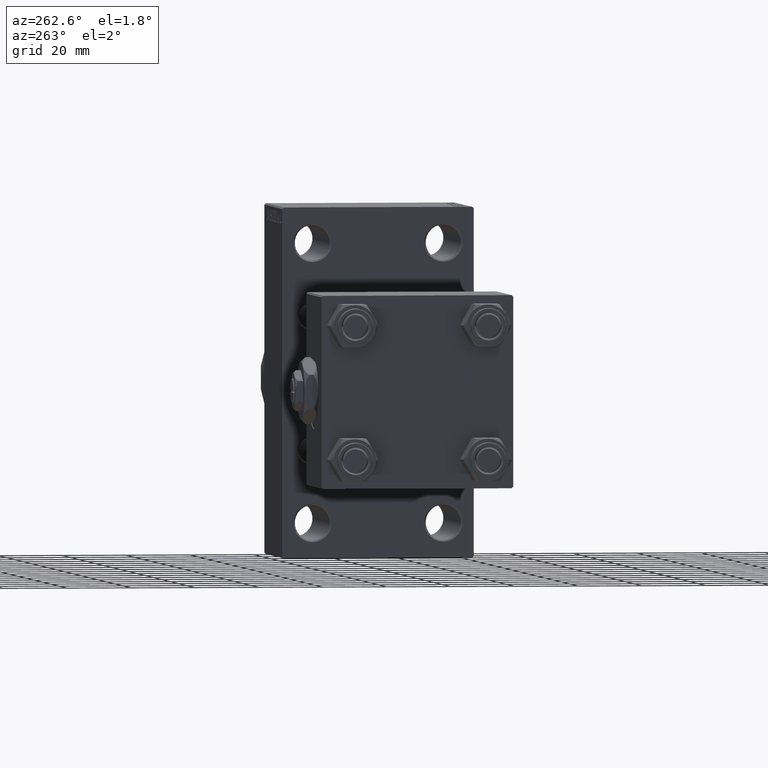
[diagram: clean part render]
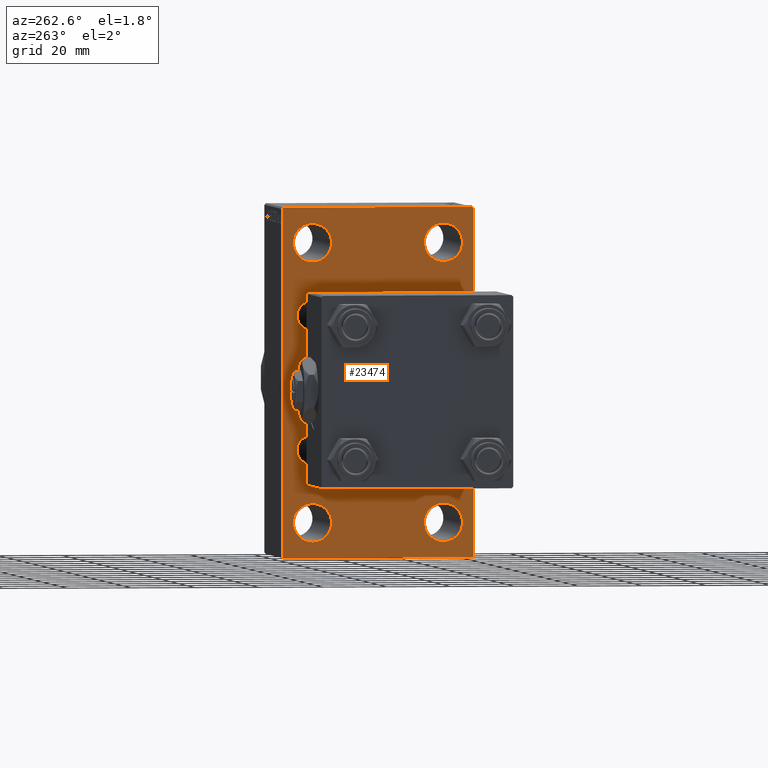
[diagram: same view with one face highlighted and labeled with its STEP entity id]
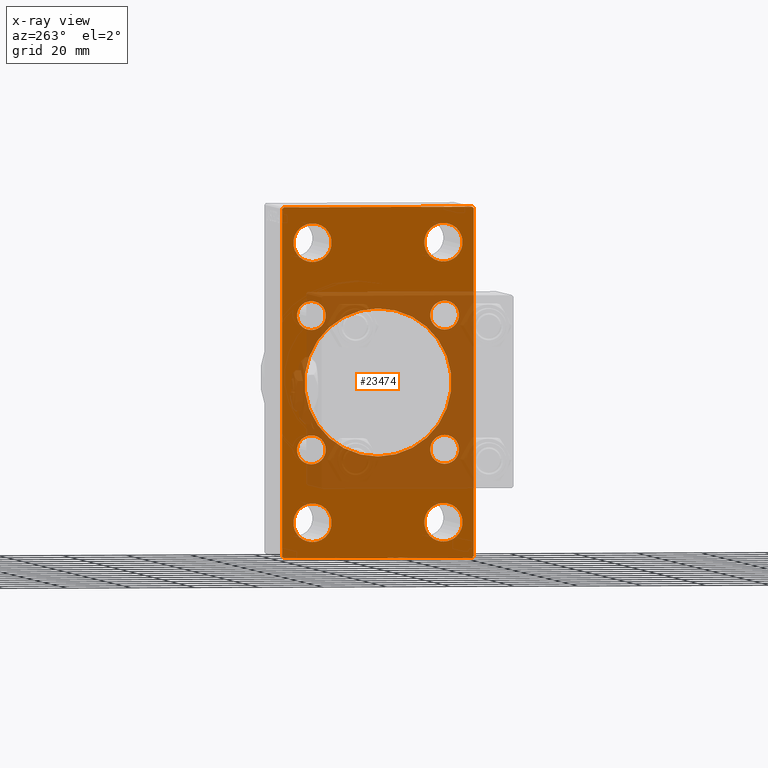
[diagram: x-ray of the same camera — body ghosted, the highlighted face saturated]
A machine part, auxiliary view. The second image highlights one B-rep face of the part: STEP entity #23474.
The next image is the same camera in x-ray: the body ghosted, the highlighted face saturated — about 34% of this face is hidden behind the body in this view.
In plain terms, the highlighted planar face has unit normal (-1, 0, 0).
Its self-contained STEP definition (entity closure, byte-faithful):
#20 = DIRECTION ( 'NONE',  ( 0.000000000000000000, 0.000000000000000000, 1.000000000000000000 ) ) ;
#366 = DIRECTION ( 'NONE',  ( -0.000000000000000000, 0.7071067811865451302, 0.7071067811865500152 ) ) ;
#473 = EDGE_CURVE ( 'NONE', #29864, #26269, #21199, .T. ) ;
#630 = ORIENTED_EDGE ( 'NONE', *, *, #32202, .T. ) ;
#711 = VERTEX_POINT ( 'NONE', #38872 ) ;
#1065 = CARTESIAN_POINT ( 'NONE',  ( 95.00000000000000000, -20.50000000000000000, -49.49999999999989342 ) ) ;
#1252 = CARTESIAN_POINT ( 'NONE',  ( 95.00000000000000000, -30.00000000000000000, -53.99999999999998579 ) ) ;
#1906 = AXIS2_PLACEMENT_3D ( 'NONE', #42564, #16215, #34692 ) ;
#1993 = VECTOR ( 'NONE', #13143, 1000.000000000000000 ) ;
#2039 = ORIENTED_EDGE ( 'NONE', *, *, #43301, .T. ) ;
#2206 = CIRCLE ( 'NONE', #39950, 5.999999999999894307 ) ;
#2331 = CARTESIAN_POINT ( 'NONE',  ( 95.00000000000000000, 20.50000000000000000, -37.50000000000009948 ) ) ;
#2340 = AXIS2_PLACEMENT_3D ( 'NONE', #17667, #6334, #14899 ) ;
#2724 = CIRCLE ( 'NONE', #18427, 4.500000000000007105 ) ;
#2856 = CARTESIAN_POINT ( 'NONE',  ( 95.00000000000000000, 0.000000000000000000, 0.000000000000000000 ) ) ;
#2968 = ORIENTED_EDGE ( 'NONE', *, *, #11060, .T. ) ;
#3415 = FACE_BOUND ( 'NONE', #14190, .T. ) ;
#3755 = DIRECTION ( 'NONE',  ( 0.000000000000000000, 0.000000000000000000, 1.000000000000000000 ) ) ;
#3789 = CIRCLE ( 'NONE', #45454, 4.500000000000007105 ) ;
#4281 = VERTEX_POINT ( 'NONE', #1065 ) ;
#4614 = CARTESIAN_POINT ( 'NONE',  ( 95.00000000000000000, 20.50000000000000000, 43.50000000000000000 ) ) ;
#4845 = DIRECTION ( 'NONE',  ( 0.000000000000000000, 0.000000000000000000, 1.000000000000000000 ) ) ;
#5000 = CARTESIAN_POINT ( 'NONE',  ( 95.00000000000000000, 20.84999999999999787, 16.34999999999999432 ) ) ;
#5062 = ORIENTED_EDGE ( 'NONE', *, *, #16625, .T. ) ;
#5366 = EDGE_CURVE ( 'NONE', #46607, #18699, #43188, .T. ) ;
#5872 = EDGE_CURVE ( 'NONE', #22015, #26871, #33420, .T. ) ;
#5928 = CARTESIAN_POINT ( 'NONE',  ( 95.00000000000000000, 29.99999999999999645, 54.49999999999999289 ) ) ;
#6044 = AXIS2_PLACEMENT_3D ( 'NONE', #2856, #20838, #9738 ) ;
#6133 = AXIS2_PLACEMENT_3D ( 'NONE', #23908, #8882, #38939 ) ;
#6180 = CARTESIAN_POINT ( 'NONE',  ( 95.00000000000000000, 20.84999999999999787, 20.85000000000000142 ) ) ;
#6334 = DIRECTION ( 'NONE',  ( 1.000000000000000000, -0.000000000000000000, 0.000000000000000000 ) ) ;
#7117 = FACE_BOUND ( 'NONE', #27988, .T. ) ;
#8026 = DIRECTION ( 'NONE',  ( 1.000000000000000000, -0.000000000000000000, 0.000000000000000000 ) ) ;
#8247 = DIRECTION ( 'NONE',  ( 1.000000000000000000, -0.000000000000000000, 0.000000000000000000 ) ) ;
#8277 = ORIENTED_EDGE ( 'NONE', *, *, #38651, .T. ) ;
#8612 = DIRECTION ( 'NONE',  ( 1.000000000000000000, -0.000000000000000000, 0.000000000000000000 ) ) ;
#8882 = DIRECTION ( 'NONE',  ( 1.000000000000000000, -0.000000000000000000, 0.000000000000000000 ) ) ;
#8992 = AXIS2_PLACEMENT_3D ( 'NONE', #9026, #34665, #20125 ) ;
#9026 = CARTESIAN_POINT ( 'NONE',  ( 95.00000000000000000, -20.84999999999999076, 20.85000000000000497 ) ) ;
#9206 = CARTESIAN_POINT ( 'NONE',  ( 95.00000000000000000, 29.50000000000002132, 54.49999999999999289 ) ) ;
#9522 = CARTESIAN_POINT ( 'NONE',  ( 95.00000000000000000, -20.84999999999999076, -25.35000000000001208 ) ) ;
#9738 = DIRECTION ( 'NONE',  ( -0.000000000000000000, 0.000000000000000000, 1.000000000000000000 ) ) ;
#9902 = VERTEX_POINT ( 'NONE', #27894 ) ;
#9963 = ORIENTED_EDGE ( 'NONE', *, *, #45740, .F. ) ;
#10041 = VERTEX_POINT ( 'NONE', #22199 ) ;
#10136 = CIRCLE ( 'NONE', #14082, 5.999999999999894307 ) ;
#10139 = CIRCLE ( 'NONE', #14085, 4.500000000000007105 ) ;
#10411 = DIRECTION ( 'NONE',  ( 1.000000000000000000, 0.000000000000000000, 0.000000000000000000 ) ) ;
#10473 = ORIENTED_EDGE ( 'NONE', *, *, #17104, .T. ) ;
#10546 = VERTEX_POINT ( 'NONE', #5000 ) ;
#10613 = AXIS2_PLACEMENT_3D ( 'NONE', #39997, #47387, #46674 ) ;
#10808 = FACE_BOUND ( 'NONE', #31910, .T. ) ;
#11060 = EDGE_CURVE ( 'NONE', #18699, #33617, #37883, .T. ) ;
#11218 = ORIENTED_EDGE ( 'NONE', *, *, #48584, .T. ) ;
#11388 = VECTOR ( 'NONE', #31160, 1000.000000000000000 ) ;
#11591 = CIRCLE ( 'NONE', #46992, 4.500000000000007105 ) ;
#11863 = ORIENTED_EDGE ( 'NONE', *, *, #15330, .T. ) ;
#12016 = ORIENTED_EDGE ( 'NONE', *, *, #5366, .T. ) ;
#12368 = DIRECTION ( 'NONE',  ( 0.000000000000000000, 0.000000000000000000, -1.000000000000000000 ) ) ;
#12399 = ORIENTED_EDGE ( 'NONE', *, *, #18657, .T. ) ;
#12667 = LINE ( 'NONE', #46647, #1993 ) ;
#12956 = VECTOR ( 'NONE', #27057, 1000.000000000000114 ) ;
#13143 = DIRECTION ( 'NONE',  ( 0.000000000000000000, 0.000000000000000000, -1.000000000000000000 ) ) ;
#13162 = CARTESIAN_POINT ( 'NONE',  ( 95.00000000000000000, 20.50000000000000000, 49.49999999999989342 ) ) ;
#13186 = ORIENTED_EDGE ( 'NONE', *, *, #30284, .T. ) ;
#13261 = ORIENTED_EDGE ( 'NONE', *, *, #42337, .T. ) ;
#13276 = VECTOR ( 'NONE', #17795, 1000.000000000000000 ) ;
#13291 = EDGE_LOOP ( 'NONE', ( #28984, #43757 ) ) ;
#13364 = CARTESIAN_POINT ( 'NONE',  ( 95.00000000000000000, 29.99999999999999645, -54.49999999999999289 ) ) ;
#13484 = CARTESIAN_POINT ( 'NONE',  ( 95.00000000000000000, -20.84999999999999076, 25.35000000000001208 ) ) ;
#13650 = ORIENTED_EDGE ( 'NONE', *, *, #17931, .T. ) ;
#14082 = AXIS2_PLACEMENT_3D ( 'NONE', #4614, #15700, #4845 ) ;
#14085 = AXIS2_PLACEMENT_3D ( 'NONE', #44399, #40945, #3755 ) ;
#14182 = DIRECTION ( 'NONE',  ( 1.000000000000000000, -0.000000000000000000, 0.000000000000000000 ) ) ;
#14190 = EDGE_LOOP ( 'NONE', ( #39777, #23242 ) ) ;
#14360 = CARTESIAN_POINT ( 'NONE',  ( 95.00000000000000000, -20.50000000000000000, 49.49999999999989342 ) ) ;
#14501 = FACE_BOUND ( 'NONE', #40305, .T. ) ;
#14899 = DIRECTION ( 'NONE',  ( 0.000000000000000000, 0.000000000000000000, 1.000000000000000000 ) ) ;
#15257 = CARTESIAN_POINT ( 'NONE',  ( 95.00000000000000000, 2.146024240737012665E-16, -23.00000000000000000 ) ) ;
#15296 = CARTESIAN_POINT ( 'NONE',  ( 95.00000000000000000, 20.84999999999999787, -25.35000000000000853 ) ) ;
#15304 = AXIS2_PLACEMENT_3D ( 'NONE', #22562, #8026, #29726 ) ;
#15330 = EDGE_CURVE ( 'NONE', #10041, #36801, #44811, .T. ) ;
#15571 = AXIS2_PLACEMENT_3D ( 'NONE', #44779, #29270, #44054 ) ;
#15700 = DIRECTION ( 'NONE',  ( 1.000000000000000000, -0.000000000000000000, 0.000000000000000000 ) ) ;
#15854 = VERTEX_POINT ( 'NONE', #15257 ) ;
#15866 = ORIENTED_EDGE ( 'NONE', *, *, #38179, .T. ) ;
#16130 = CARTESIAN_POINT ( 'NONE',  ( 95.00000000000000000, -42.00000000000051159, -41.99999999999905498 ) ) ;
#16215 = DIRECTION ( 'NONE',  ( 1.000000000000000000, -0.000000000000000000, 0.000000000000000000 ) ) ;
#16625 = EDGE_CURVE ( 'NONE', #39354, #26269, #26958, .T. ) ;
#17104 = EDGE_CURVE ( 'NONE', #36801, #10041, #10136, .T. ) ;
#17610 = PLANE ( 'NONE',  #6044 ) ;
#17667 = CARTESIAN_POINT ( 'NONE',  ( 95.00000000000000000, 20.50000000000000000, 43.50000000000000000 ) ) ;
#17694 = CARTESIAN_POINT ( 'NONE',  ( 95.00000000000000000, 20.84999999999999787, 25.35000000000000853 ) ) ;
#17795 = DIRECTION ( 'NONE',  ( 0.000000000000000000, 0.000000000000000000, -1.000000000000000000 ) ) ;
#17931 = EDGE_CURVE ( 'NONE', #29864, #46607, #33538, .T. ) ;
#18073 = DIRECTION ( 'NONE',  ( 1.000000000000000000, -0.000000000000000000, 0.000000000000000000 ) ) ;
#18306 = DIRECTION ( 'NONE',  ( 0.000000000000000000, 0.000000000000000000, 1.000000000000000000 ) ) ;
#18427 = AXIS2_PLACEMENT_3D ( 'NONE', #29195, #21307, #26219 ) ;
#18433 = FACE_BOUND ( 'NONE', #32435, .T. ) ;
#18503 = EDGE_CURVE ( 'NONE', #23170, #4281, #2206, .T. ) ;
#18657 = EDGE_CURVE ( 'NONE', #32084, #40982, #27380, .T. ) ;
#18699 = VERTEX_POINT ( 'NONE', #32448 ) ;
#19102 = CARTESIAN_POINT ( 'NONE',  ( 95.00000000000000000, -20.84999999999999076, 16.34999999999999787 ) ) ;
#19371 = EDGE_LOOP ( 'NONE', ( #47540, #11218 ) ) ;
#19693 = CARTESIAN_POINT ( 'NONE',  ( 95.00000000000000000, -20.84999999999999076, -20.85000000000000497 ) ) ;
#20125 = DIRECTION ( 'NONE',  ( 0.000000000000000000, 0.000000000000000000, 1.000000000000000000 ) ) ;
#20356 = EDGE_CURVE ( 'NONE', #46086, #10546, #28383, .T. ) ;
#20838 = DIRECTION ( 'NONE',  ( -1.000000000000000000, 0.000000000000000000, -0.000000000000000000 ) ) ;
#21199 = LINE ( 'NONE', #5928, #41299 ) ;
#21307 = DIRECTION ( 'NONE',  ( 1.000000000000000000, -0.000000000000000000, 0.000000000000000000 ) ) ;
#21702 = DIRECTION ( 'NONE',  ( 0.000000000000000000, 0.000000000000000000, 1.000000000000000000 ) ) ;
#21984 = DIRECTION ( 'NONE',  ( 1.000000000000000000, -0.000000000000000000, 0.000000000000000000 ) ) ;
#22015 = VERTEX_POINT ( 'NONE', #14360 ) ;
#22199 = CARTESIAN_POINT ( 'NONE',  ( 95.00000000000000000, 20.50000000000000000, 37.50000000000009948 ) ) ;
#22402 = VERTEX_POINT ( 'NONE', #9522 ) ;
#22554 = CARTESIAN_POINT ( 'NONE',  ( 95.00000000000000000, -20.50000000000000000, 37.50000000000009948 ) ) ;
#22562 = CARTESIAN_POINT ( 'NONE',  ( 95.00000000000000000, -20.50000000000000000, 43.50000000000000000 ) ) ;
#23006 = DIRECTION ( 'NONE',  ( 0.000000000000000000, 0.000000000000000000, 1.000000000000000000 ) ) ;
#23141 = CIRCLE ( 'NONE', #1906, 4.500000000000007105 ) ;
#23162 = VECTOR ( 'NONE', #25163, 1000.000000000000000 ) ;
#23170 = VERTEX_POINT ( 'NONE', #28611 ) ;
#23242 = ORIENTED_EDGE ( 'NONE', *, *, #42481, .T. ) ;
#23474 = ADVANCED_FACE ( 'NONE', ( #14501, #44562, #3415, #10808, #25852, #40858, #7117, #18433, #33486, #39793 ), #17610, .T. ) ;
#23645 = EDGE_CURVE ( 'NONE', #40616, #39913, #35975, .T. ) ;
#23750 = LINE ( 'NONE', #16130, #11388 ) ;
#23908 = CARTESIAN_POINT ( 'NONE',  ( 95.00000000000000000, 20.84999999999999787, -20.85000000000000142 ) ) ;
#24082 = EDGE_LOOP ( 'NONE', ( #630, #15866 ) ) ;
#24232 = CARTESIAN_POINT ( 'NONE',  ( 95.00000000000000000, 29.99999999999999645, 54.49999999999999289 ) ) ;
#24269 = CARTESIAN_POINT ( 'NONE',  ( 95.00000000000000000, -29.49999999999997513, 54.50000000000000000 ) ) ;
#25163 = DIRECTION ( 'NONE',  ( 0.000000000000000000, 0.7071067811865279218, -0.7071067811865671127 ) ) ;
#25260 = CARTESIAN_POINT ( 'NONE',  ( 95.00000000000000000, 20.50000000000000000, -43.50000000000000000 ) ) ;
#25274 = CARTESIAN_POINT ( 'NONE',  ( 95.00000000000000000, -20.50000000000000000, 43.50000000000000000 ) ) ;
#25690 = DIRECTION ( 'NONE',  ( 1.000000000000000000, -0.000000000000000000, 0.000000000000000000 ) ) ;
#25759 = AXIS2_PLACEMENT_3D ( 'NONE', #25260, #18073, #18306 ) ;
#25852 = FACE_BOUND ( 'NONE', #24082, .T. ) ;
#26050 = VERTEX_POINT ( 'NONE', #13484 ) ;
#26053 = ORIENTED_EDGE ( 'NONE', *, *, #46409, .T. ) ;
#26219 = DIRECTION ( 'NONE',  ( 0.000000000000000000, 0.000000000000000000, 1.000000000000000000 ) ) ;
#26253 = EDGE_CURVE ( 'NONE', #4281, #23170, #48393, .T. ) ;
#26269 = VERTEX_POINT ( 'NONE', #24269 ) ;
#26570 = CIRCLE ( 'NONE', #15571, 23.00000000000000000 ) ;
#26722 = CARTESIAN_POINT ( 'NONE',  ( 95.00000000000000000, -42.00000000000008527, 41.99999999999979394 ) ) ;
#26871 = VERTEX_POINT ( 'NONE', #22554 ) ;
#26958 = LINE ( 'NONE', #26722, #40015 ) ;
#27057 = DIRECTION ( 'NONE',  ( -0.000000000000000000, -0.7071067811865474617, -0.7071067811865474617 ) ) ;
#27380 = CIRCLE ( 'NONE', #6133, 4.500000000000007105 ) ;
#27758 = VERTEX_POINT ( 'NONE', #19102 ) ;
#27894 = CARTESIAN_POINT ( 'NONE',  ( 95.00000000000000000, -20.84999999999999076, -16.34999999999999787 ) ) ;
#27988 = EDGE_LOOP ( 'NONE', ( #12399, #2039 ) ) ;
#28383 = CIRCLE ( 'NONE', #30741, 4.500000000000007105 ) ;
#28611 = CARTESIAN_POINT ( 'NONE',  ( 95.00000000000000000, -20.50000000000000000, -37.50000000000009948 ) ) ;
#28835 = DIRECTION ( 'NONE',  ( 0.000000000000000000, -1.000000000000000000, 1.156482317317871478E-16 ) ) ;
#28855 = CARTESIAN_POINT ( 'NONE',  ( 95.00000000000000000, 42.00000000000082423, 41.99999999999849365 ) ) ;
#28984 = ORIENTED_EDGE ( 'NONE', *, *, #30577, .T. ) ;
#29028 = ORIENTED_EDGE ( 'NONE', *, *, #473, .F. ) ;
#29195 = CARTESIAN_POINT ( 'NONE',  ( 95.00000000000000000, 20.84999999999999787, -20.85000000000000142 ) ) ;
#29264 = VERTEX_POINT ( 'NONE', #44334 ) ;
#29270 = DIRECTION ( 'NONE',  ( 1.000000000000000000, 0.000000000000000000, 0.000000000000000000 ) ) ;
#29410 = AXIS2_PLACEMENT_3D ( 'NONE', #48342, #25690, #44641 ) ;
#29704 = EDGE_CURVE ( 'NONE', #22402, #9902, #11591, .T. ) ;
#29726 = DIRECTION ( 'NONE',  ( 0.000000000000000000, 0.000000000000000000, 1.000000000000000000 ) ) ;
#29864 = VERTEX_POINT ( 'NONE', #9206 ) ;
#29943 = DIRECTION ( 'NONE',  ( 0.000000000000000000, 0.000000000000000000, 1.000000000000000000 ) ) ;
#29980 = EDGE_CURVE ( 'NONE', #15854, #711, #46235, .T. ) ;
#30284 = EDGE_CURVE ( 'NONE', #9902, #22402, #3789, .T. ) ;
#30577 = EDGE_CURVE ( 'NONE', #711, #15854, #26570, .T. ) ;
#30680 = CARTESIAN_POINT ( 'NONE',  ( 95.00000000000000000, 20.84999999999999787, -16.34999999999999432 ) ) ;
#30741 = AXIS2_PLACEMENT_3D ( 'NONE', #6180, #32781, #21702 ) ;
#31160 = DIRECTION ( 'NONE',  ( 0.000000000000000000, -0.7071067811865352493, 0.7071067811865597852 ) ) ;
#31908 = ORIENTED_EDGE ( 'NONE', *, *, #5872, .T. ) ;
#31910 = EDGE_LOOP ( 'NONE', ( #10473, #11863 ) ) ;
#31940 = EDGE_LOOP ( 'NONE', ( #44481, #40500 ) ) ;
#32084 = VERTEX_POINT ( 'NONE', #30680 ) ;
#32202 = EDGE_CURVE ( 'NONE', #26050, #27758, #10139, .T. ) ;
#32435 = EDGE_LOOP ( 'NONE', ( #13186, #40321 ) ) ;
#32448 = CARTESIAN_POINT ( 'NONE',  ( 95.00000000000000000, 29.99999999999999645, -53.99999999999999289 ) ) ;
#32781 = DIRECTION ( 'NONE',  ( 1.000000000000000000, -0.000000000000000000, 0.000000000000000000 ) ) ;
#33420 = CIRCLE ( 'NONE', #15304, 5.999999999999894307 ) ;
#33486 = FACE_BOUND ( 'NONE', #13291, .T. ) ;
#33501 = CIRCLE ( 'NONE', #48445, 5.999999999999894307 ) ;
#33538 = LINE ( 'NONE', #28855, #23162 ) ;
#33567 = DIRECTION ( 'NONE',  ( 0.000000000000000000, 0.000000000000000000, 1.000000000000000000 ) ) ;
#33617 = VERTEX_POINT ( 'NONE', #39915 ) ;
#34034 = CARTESIAN_POINT ( 'NONE',  ( 95.00000000000000000, -20.50000000000000000, -43.50000000000000000 ) ) ;
#34119 = VECTOR ( 'NONE', #43411, 1000.000000000000000 ) ;
#34665 = DIRECTION ( 'NONE',  ( 1.000000000000000000, -0.000000000000000000, 0.000000000000000000 ) ) ;
#34692 = DIRECTION ( 'NONE',  ( 0.000000000000000000, 0.000000000000000000, 1.000000000000000000 ) ) ;
#35187 = CARTESIAN_POINT ( 'NONE',  ( 95.00000000000000000, 41.99999999999998579, -41.99999999999998579 ) ) ;
#35715 = CIRCLE ( 'NONE', #8992, 4.500000000000007105 ) ;
#35757 = CARTESIAN_POINT ( 'NONE',  ( 95.00000000000000000, 20.50000000000000000, -49.49999999999989342 ) ) ;
#35975 = CIRCLE ( 'NONE', #25759, 5.999999999999894307 ) ;
#36021 = LINE ( 'NONE', #13364, #34119 ) ;
#36801 = VERTEX_POINT ( 'NONE', #13162 ) ;
#37596 = AXIS2_PLACEMENT_3D ( 'NONE', #44162, #10411, #12368 ) ;
#37883 = LINE ( 'NONE', #35187, #12956 ) ;
#38179 = EDGE_CURVE ( 'NONE', #27758, #26050, #35715, .T. ) ;
#38651 = EDGE_CURVE ( 'NONE', #29264, #47111, #23750, .T. ) ;
#38872 = CARTESIAN_POINT ( 'NONE',  ( 95.00000000000000000, -2.602085213965210642E-15, 23.00000000000000000 ) ) ;
#38939 = DIRECTION ( 'NONE',  ( 0.000000000000000000, 0.000000000000000000, 1.000000000000000000 ) ) ;
#39354 = VERTEX_POINT ( 'NONE', #44487 ) ;
#39777 = ORIENTED_EDGE ( 'NONE', *, *, #23645, .T. ) ;
#39793 = FACE_OUTER_BOUND ( 'NONE', #47404, .T. ) ;
#39913 = VERTEX_POINT ( 'NONE', #35757 ) ;
#39915 = CARTESIAN_POINT ( 'NONE',  ( 95.00000000000000000, 29.49999999999999645, -54.49999999999999289 ) ) ;
#39950 = AXIS2_PLACEMENT_3D ( 'NONE', #34034, #21984, #33567 ) ;
#39997 = CARTESIAN_POINT ( 'NONE',  ( 95.00000000000000000, -20.50000000000000000, -43.50000000000000000 ) ) ;
#40015 = VECTOR ( 'NONE', #366, 1000.000000000000114 ) ;
#40305 = EDGE_LOOP ( 'NONE', ( #31908, #26053 ) ) ;
#40321 = ORIENTED_EDGE ( 'NONE', *, *, #29704, .T. ) ;
#40500 = ORIENTED_EDGE ( 'NONE', *, *, #26253, .T. ) ;
#40616 = VERTEX_POINT ( 'NONE', #2331 ) ;
#40858 = FACE_BOUND ( 'NONE', #19371, .T. ) ;
#40945 = DIRECTION ( 'NONE',  ( 1.000000000000000000, -0.000000000000000000, 0.000000000000000000 ) ) ;
#40982 = VERTEX_POINT ( 'NONE', #15296 ) ;
#41299 = VECTOR ( 'NONE', #28835, 1000.000000000000000 ) ;
#42229 = CARTESIAN_POINT ( 'NONE',  ( 95.00000000000000000, -20.84999999999999076, -20.85000000000000497 ) ) ;
#42337 = EDGE_CURVE ( 'NONE', #33617, #29264, #36021, .T. ) ;
#42481 = EDGE_CURVE ( 'NONE', #39913, #40616, #44341, .T. ) ;
#42564 = CARTESIAN_POINT ( 'NONE',  ( 95.00000000000000000, 20.84999999999999787, 20.85000000000000142 ) ) ;
#43188 = LINE ( 'NONE', #24232, #13276 ) ;
#43301 = EDGE_CURVE ( 'NONE', #40982, #32084, #2724, .T. ) ;
#43411 = DIRECTION ( 'NONE',  ( 0.000000000000000000, -1.000000000000000000, -1.156482317317871478E-16 ) ) ;
#43757 = ORIENTED_EDGE ( 'NONE', *, *, #29980, .T. ) ;
#44054 = DIRECTION ( 'NONE',  ( 0.000000000000000000, 0.000000000000000000, -1.000000000000000000 ) ) ;
#44162 = CARTESIAN_POINT ( 'NONE',  ( 95.00000000000000000, -2.602085213965210642E-15, 0.000000000000000000 ) ) ;
#44334 = CARTESIAN_POINT ( 'NONE',  ( 95.00000000000000000, -29.50000000000000355, -54.50000000000000000 ) ) ;
#44341 = CIRCLE ( 'NONE', #29410, 5.999999999999894307 ) ;
#44399 = CARTESIAN_POINT ( 'NONE',  ( 95.00000000000000000, -20.84999999999999076, 20.85000000000000497 ) ) ;
#44481 = ORIENTED_EDGE ( 'NONE', *, *, #18503, .T. ) ;
#44487 = CARTESIAN_POINT ( 'NONE',  ( 95.00000000000000000, -30.00000000000000000, 53.99999999999997158 ) ) ;
#44562 = FACE_BOUND ( 'NONE', #31940, .T. ) ;
#44641 = DIRECTION ( 'NONE',  ( 0.000000000000000000, 0.000000000000000000, 1.000000000000000000 ) ) ;
#44779 = CARTESIAN_POINT ( 'NONE',  ( 95.00000000000000000, -2.602085213965210642E-15, 0.000000000000000000 ) ) ;
#44811 = CIRCLE ( 'NONE', #2340, 5.999999999999894307 ) ;
#45454 = AXIS2_PLACEMENT_3D ( 'NONE', #19693, #8612, #20 ) ;
#45740 = EDGE_CURVE ( 'NONE', #39354, #47111, #12667, .T. ) ;
#46086 = VERTEX_POINT ( 'NONE', #17694 ) ;
#46235 = CIRCLE ( 'NONE', #37596, 23.00000000000000000 ) ;
#46409 = EDGE_CURVE ( 'NONE', #26871, #22015, #33501, .T. ) ;
#46607 = VERTEX_POINT ( 'NONE', #47374 ) ;
#46647 = CARTESIAN_POINT ( 'NONE',  ( 95.00000000000000000, -30.00000000000000000, 54.50000000000000000 ) ) ;
#46674 = DIRECTION ( 'NONE',  ( 0.000000000000000000, 0.000000000000000000, 1.000000000000000000 ) ) ;
#46992 = AXIS2_PLACEMENT_3D ( 'NONE', #42229, #8247, #23006 ) ;
#47111 = VERTEX_POINT ( 'NONE', #1252 ) ;
#47374 = CARTESIAN_POINT ( 'NONE',  ( 95.00000000000000000, 29.99999999999999645, 53.99999999999999289 ) ) ;
#47387 = DIRECTION ( 'NONE',  ( 1.000000000000000000, -0.000000000000000000, 0.000000000000000000 ) ) ;
#47404 = EDGE_LOOP ( 'NONE', ( #13261, #8277, #9963, #5062, #29028, #13650, #12016, #2968 ) ) ;
#47540 = ORIENTED_EDGE ( 'NONE', *, *, #20356, .T. ) ;
#48342 = CARTESIAN_POINT ( 'NONE',  ( 95.00000000000000000, 20.50000000000000000, -43.50000000000000000 ) ) ;
#48393 = CIRCLE ( 'NONE', #10613, 5.999999999999894307 ) ;
#48445 = AXIS2_PLACEMENT_3D ( 'NONE', #25274, #14182, #29943 ) ;
#48584 = EDGE_CURVE ( 'NONE', #10546, #46086, #23141, .T. ) ;